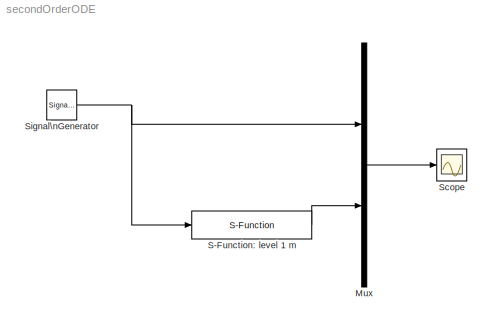
MODEL secondOrderODE
KIND model
BLOCK [Mux] Mux
  DisplayOption = bar
  Inputs = 2
  Ports = [2, 1]
  SID = 1
BLOCK [S-Function] S-Function: level 1 m
  EnableBusSupport = off
  FunctionName = secondOrder_m
  Parameters = 0.707, 2.5
  Ports = [1, 1]
  SFcnIsStateOwnerBlock = off
  SFunctionDeploymentMode = off
  SID = 3
BLOCK [Scope] Scope
  NumInputPorts = 1
  Ports = [1]
  SID = 4
  ScopeSpecificationString = Simulink.scopes.TimeScopeBlockCfg('CurrentConfiguration', extmgr.ConfigurationSet(extmgr.Configuration('Core','General UI',true),extmgr.Configuration('Core','Source UI',true),extmgr.Configuration('Sources','WiredSimulink',true,'DataLoggingSaveFormat','StructureWithTime','DataLoggingLimitDataPoints',true,'DataLoggingDecimation','1','DataLoggingDecimateData',true),extmgr.Configuration('Visuals','Tim...<+1676ch>
BLOCK [SignalGenerator] Signal\nGenerator
  Frequency = .1
  Ports = [0, 1]
  SID = 5
  WaveForm = square
LINE Mux:1 -> Scope:1
LINE S-Function: level 1 m:1 -> Mux:2
NET Signal\nGenerator:1 -> Mux:1, S-Function: level 1 m:1
note: NET lines group one-source signal fan-out (src -> all destinations, sorted); 1:1 wires keep LINE
